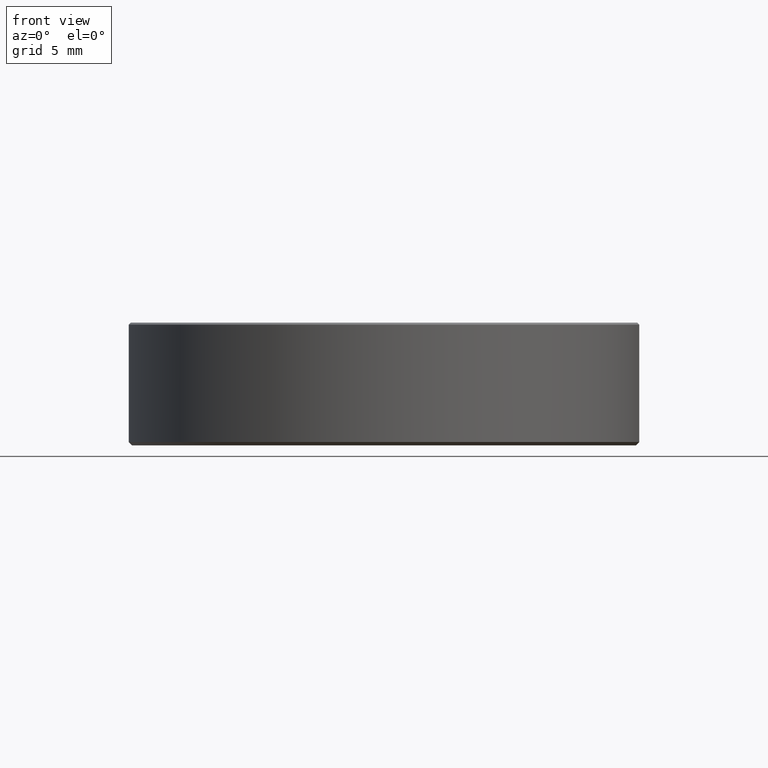
[diagram: clean part render]
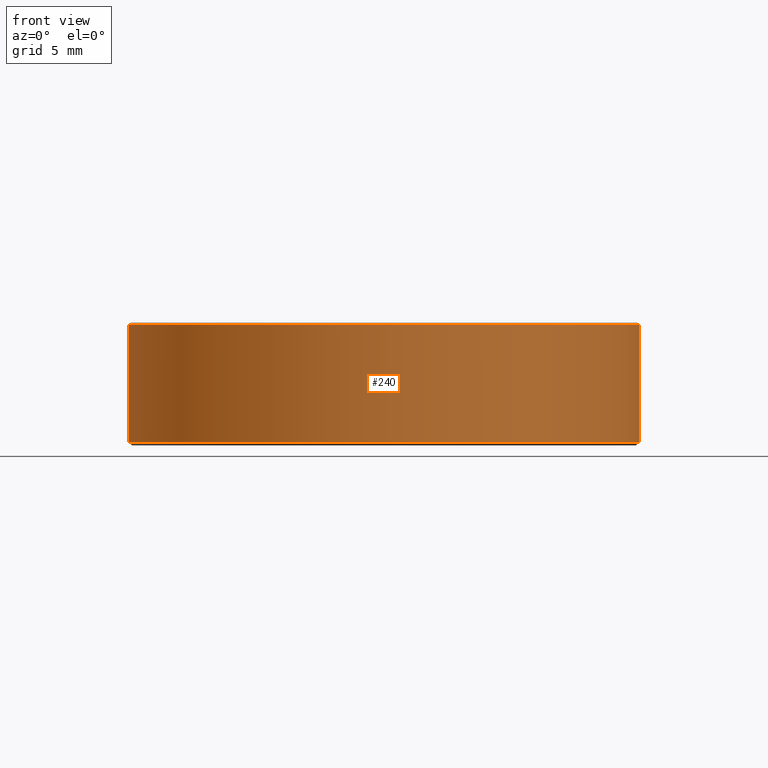
[diagram: same view with one face highlighted and labeled with its STEP entity id]
A machine part, front view. The second image highlights one B-rep face of the part: STEP entity #240.
In plain terms, the highlighted cylindrical surface (partial cylindrical patch) has radius 15 mm, axis along (-0, -0, 1).
Its self-contained STEP definition (entity closure, byte-faithful):
#15 = VECTOR ( 'NONE', #142, 1000.000000000000000 ) ;
#18 = DIRECTION ( 'NONE',  ( 0.000000000000000000, 0.000000000000000000, -1.000000000000000000 ) ) ;
#22 = AXIS2_PLACEMENT_3D ( 'NONE', #104, #62, #90 ) ;
#25 = VECTOR ( 'NONE', #129, 1000.000000000000000 ) ;
#27 = LINE ( 'NONE', #252, #25 ) ;
#29 = ORIENTED_EDGE ( 'NONE', *, *, #91, .T. ) ;
#38 = CARTESIAN_POINT ( 'NONE',  ( 15.00000000000000000, 0.000000000000000000, 7.100000000000005862 ) ) ;
#46 = AXIS2_PLACEMENT_3D ( 'NONE', #248, #18, #244 ) ;
#51 = EDGE_LOOP ( 'NONE', ( #127, #154, #193, #29 ) ) ;
#62 = DIRECTION ( 'NONE',  ( -0.000000000000000000, -0.000000000000000000, 1.000000000000000000 ) ) ;
#75 = CARTESIAN_POINT ( 'NONE',  ( 0.000000000000000000, 0.000000000000000000, 2.500000000000000000 ) ) ;
#86 = EDGE_CURVE ( 'NONE', #177, #159, #165, .T. ) ;
#90 = DIRECTION ( 'NONE',  ( 1.000000000000000000, 0.000000000000000000, 0.000000000000000000 ) ) ;
#91 = EDGE_CURVE ( 'NONE', #159, #243, #202, .T. ) ;
#104 = CARTESIAN_POINT ( 'NONE',  ( 0.000000000000000000, 0.000000000000000000, 0.2000000000000013989 ) ) ;
#113 = CARTESIAN_POINT ( 'NONE',  ( -15.00000000000000000, 1.836970198721029589E-15, 0.2000000000000013989 ) ) ;
#127 = ORIENTED_EDGE ( 'NONE', *, *, #250, .F. ) ;
#129 = DIRECTION ( 'NONE',  ( -0.000000000000000000, -0.000000000000000000, 1.000000000000000000 ) ) ;
#131 = CARTESIAN_POINT ( 'NONE',  ( -15.00000000000000000, 1.836970198721029589E-15, 7.100000000000005862 ) ) ;
#141 = CARTESIAN_POINT ( 'NONE',  ( 15.00000000000000000, 0.000000000000000000, 2.500000000000000000 ) ) ;
#142 = DIRECTION ( 'NONE',  ( -0.000000000000000000, -0.000000000000000000, 1.000000000000000000 ) ) ;
#147 = AXIS2_PLACEMENT_3D ( 'NONE', #75, #152, #216 ) ;
#151 = EDGE_CURVE ( 'NONE', #220, #177, #173, .T. ) ;
#152 = DIRECTION ( 'NONE',  ( -0.000000000000000000, -0.000000000000000000, 1.000000000000000000 ) ) ;
#154 = ORIENTED_EDGE ( 'NONE', *, *, #151, .T. ) ;
#159 = VERTEX_POINT ( 'NONE', #38 ) ;
#165 = LINE ( 'NONE', #141, #15 ) ;
#170 = FACE_OUTER_BOUND ( 'NONE', #51, .T. ) ;
#173 = CIRCLE ( 'NONE', #22, 15.00000000000000000 ) ;
#177 = VERTEX_POINT ( 'NONE', #266 ) ;
#193 = ORIENTED_EDGE ( 'NONE', *, *, #86, .T. ) ;
#202 = CIRCLE ( 'NONE', #46, 15.00000000000000000 ) ;
#216 = DIRECTION ( 'NONE',  ( 1.000000000000000000, 0.000000000000000000, 0.000000000000000000 ) ) ;
#220 = VERTEX_POINT ( 'NONE', #113 ) ;
#234 = CYLINDRICAL_SURFACE ( 'NONE', #147, 15.00000000000000000 ) ;
#240 = ADVANCED_FACE ( 'NONE', ( #170 ), #234, .T. ) ;
#243 = VERTEX_POINT ( 'NONE', #131 ) ;
#244 = DIRECTION ( 'NONE',  ( -1.000000000000000000, 0.000000000000000000, 0.000000000000000000 ) ) ;
#248 = CARTESIAN_POINT ( 'NONE',  ( 0.000000000000000000, 0.000000000000000000, 7.100000000000005862 ) ) ;
#250 = EDGE_CURVE ( 'NONE', #220, #243, #27, .T. ) ;
#252 = CARTESIAN_POINT ( 'NONE',  ( -15.00000000000000000, 1.836970198721029589E-15, 2.500000000000000000 ) ) ;
#266 = CARTESIAN_POINT ( 'NONE',  ( 15.00000000000000000, 0.000000000000000000, 0.2000000000000013989 ) ) ;